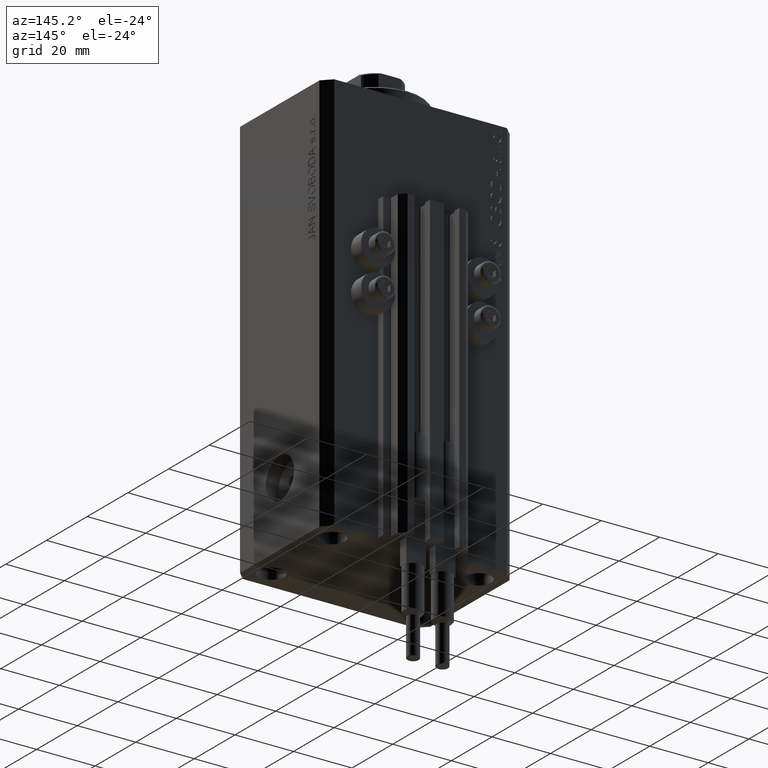
[diagram: clean part render]
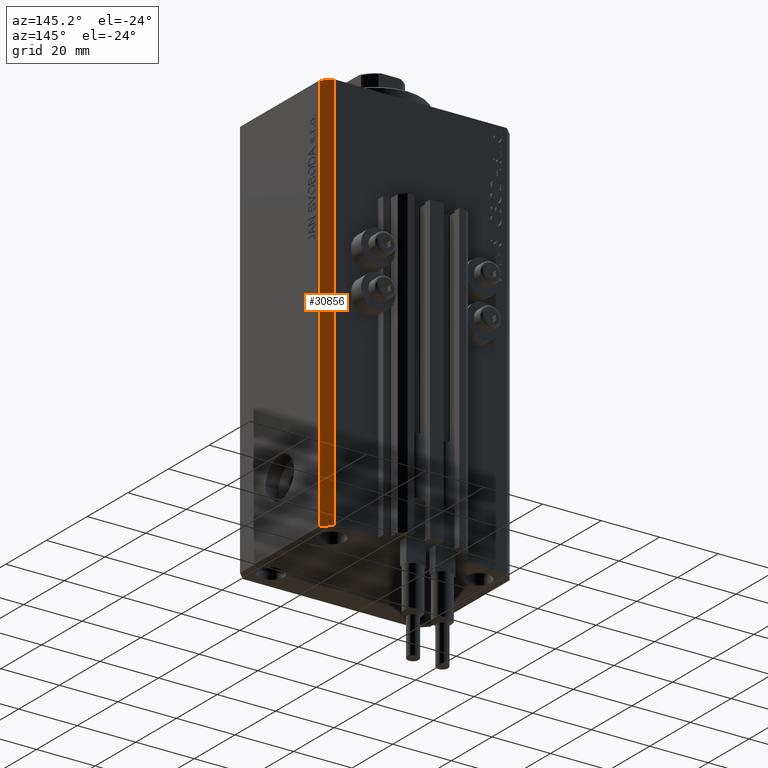
[diagram: same view with one face highlighted and labeled with its STEP entity id]
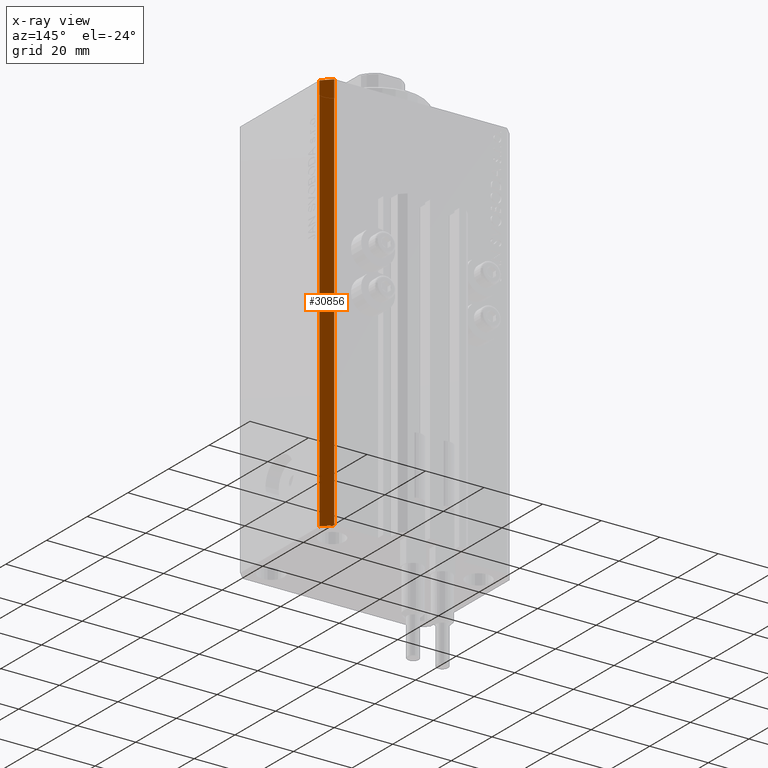
[diagram: x-ray of the same camera — body ghosted, the highlighted face saturated]
A machine part, auxiliary view. The second image highlights one B-rep face of the part: STEP entity #30856.
The next image is the same camera in x-ray: the body ghosted, the highlighted face saturated — about 0% of this face is hidden behind the body in this view.
In plain terms, the highlighted planar face has unit normal (0.7071, 0.7071, 0).
Its self-contained STEP definition (entity closure, byte-faithful):
#528 = DIRECTION ( 'NONE',  ( 0.000000000000000000, 0.000000000000000000, 1.000000000000000000 ) ) ;
#2816 = CARTESIAN_POINT ( 'NONE',  ( 29.49999999999707967, 22.49999999999952038, -137.0000000000000000 ) ) ;
#2859 = LINE ( 'NONE', #36349, #6949 ) ;
#3021 = EDGE_CURVE ( 'NONE', #47234, #40672, #24407, .T. ) ;
#5507 = ORIENTED_EDGE ( 'NONE', *, *, #39993, .F. ) ;
#5951 = DIRECTION ( 'NONE',  ( -0.7071067811865344721, 0.7071067811865606734, 0.000000000000000000 ) ) ;
#6375 = DIRECTION ( 'NONE',  ( -0.7071067811865344721, 0.7071067811865606734, 0.000000000000000000 ) ) ;
#6949 = VECTOR ( 'NONE', #28600, 1000.000000000000000 ) ;
#6980 = VECTOR ( 'NONE', #8131, 1000.000000000000000 ) ;
#7661 = VECTOR ( 'NONE', #5951, 1000.000000000000000 ) ;
#8131 = DIRECTION ( 'NONE',  ( -0.7071067811865344721, 0.7071067811865606734, 0.000000000000000000 ) ) ;
#8322 = EDGE_LOOP ( 'NONE', ( #5507, #11571, #35078, #29789 ) ) ;
#9951 = VERTEX_POINT ( 'NONE', #37423 ) ;
#11530 = LINE ( 'NONE', #11775, #6980 ) ;
#11571 = ORIENTED_EDGE ( 'NONE', *, *, #38492, .F. ) ;
#11775 = CARTESIAN_POINT ( 'NONE',  ( 32.49999999999702993, 19.49999999999945999, 0.000000000000000000 ) ) ;
#14410 = EDGE_CURVE ( 'NONE', #40672, #40441, #36705, .T. ) ;
#17558 = DIRECTION ( 'NONE',  ( 0.7071067811865606734, 0.7071067811865344721, -0.000000000000000000 ) ) ;
#20913 = CARTESIAN_POINT ( 'NONE',  ( 29.49999999999707967, 22.49999999999952038, 0.000000000000000000 ) ) ;
#24407 = LINE ( 'NONE', #39217, #7661 ) ;
#27759 = AXIS2_PLACEMENT_3D ( 'NONE', #38940, #17558, #6375 ) ;
#28600 = DIRECTION ( 'NONE',  ( 0.000000000000000000, 0.000000000000000000, 1.000000000000000000 ) ) ;
#29789 = ORIENTED_EDGE ( 'NONE', *, *, #14410, .T. ) ;
#30151 = CARTESIAN_POINT ( 'NONE',  ( 29.49999999999707967, 22.49999999999952038, -137.0000000000000000 ) ) ;
#30856 = ADVANCED_FACE ( 'NONE', ( #39877 ), #31652, .T. ) ;
#31652 = PLANE ( 'NONE',  #27759 ) ;
#35078 = ORIENTED_EDGE ( 'NONE', *, *, #3021, .T. ) ;
#35796 = VECTOR ( 'NONE', #528, 1000.000000000000000 ) ;
#36349 = CARTESIAN_POINT ( 'NONE',  ( 32.49999999999702993, 19.49999999999945999, -137.0000000000000000 ) ) ;
#36705 = LINE ( 'NONE', #30151, #35796 ) ;
#37423 = CARTESIAN_POINT ( 'NONE',  ( 32.49999999999702993, 19.49999999999945999, 0.000000000000000000 ) ) ;
#38492 = EDGE_CURVE ( 'NONE', #47234, #9951, #2859, .T. ) ;
#38940 = CARTESIAN_POINT ( 'NONE',  ( 32.49999999999702993, 19.49999999999945999, -137.0000000000000000 ) ) ;
#39217 = CARTESIAN_POINT ( 'NONE',  ( 32.49999999999702993, 19.49999999999945999, -137.0000000000000000 ) ) ;
#39877 = FACE_OUTER_BOUND ( 'NONE', #8322, .T. ) ;
#39993 = EDGE_CURVE ( 'NONE', #9951, #40441, #11530, .T. ) ;
#40441 = VERTEX_POINT ( 'NONE', #20913 ) ;
#40672 = VERTEX_POINT ( 'NONE', #2816 ) ;
#46949 = CARTESIAN_POINT ( 'NONE',  ( 32.49999999999702993, 19.49999999999945999, -137.0000000000000000 ) ) ;
#47234 = VERTEX_POINT ( 'NONE', #46949 ) ;